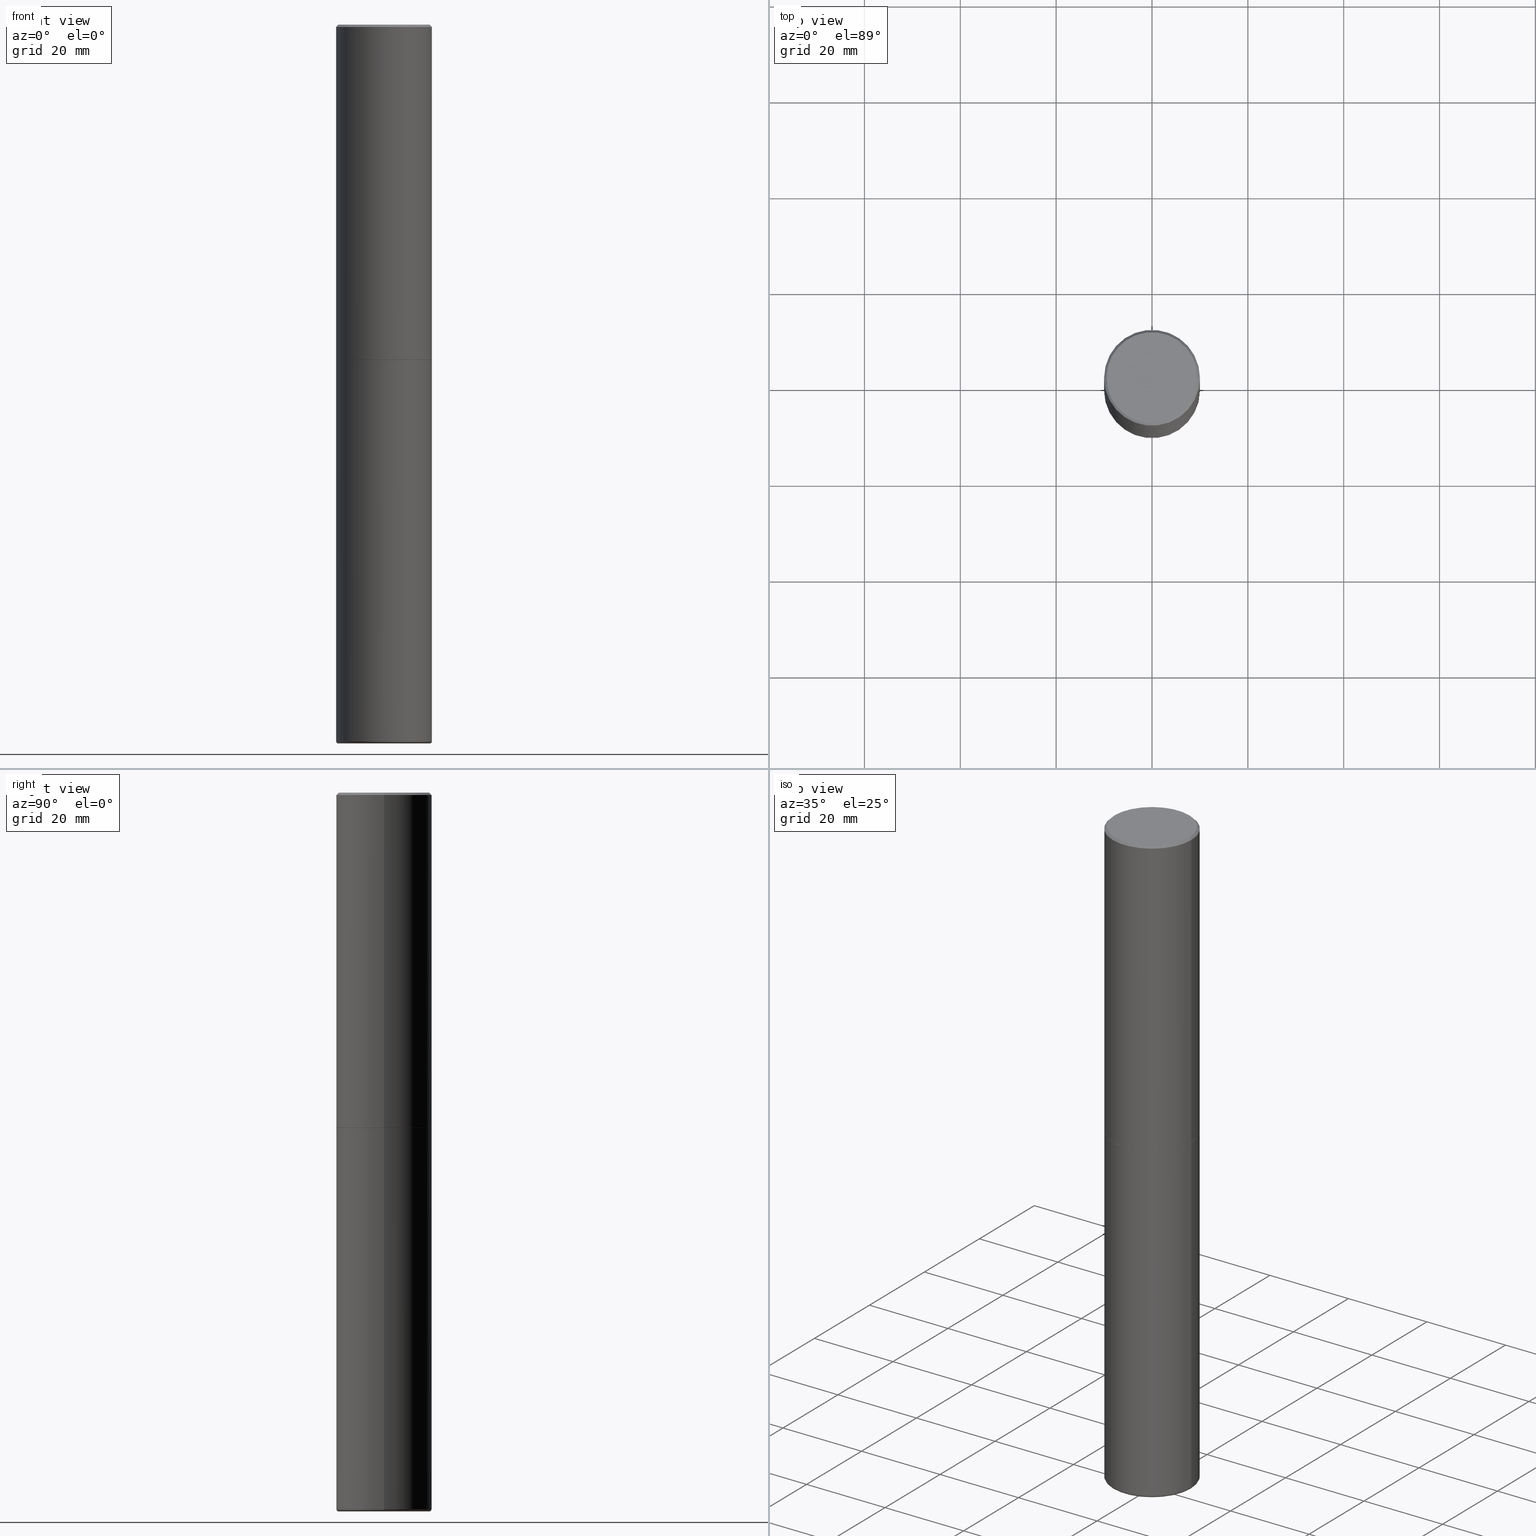
[diagram: canonical four-view strip — front | top / right | iso, engineering-drawing reading convention]
A machine part, canonical four-view strip (front | top / right | iso — engineering-drawing reading convention). The complete STEP part file that produces these views, byte-faithful:
ISO-10303-21;
HEADER;
FILE_DESCRIPTION (( 'STEP AP203' ),
    '1' );
FILE_NAME ('44880.STEP',
    '2024-03-04T13:00:22',
    ( '' ),
    ( '' ),
    'SwSTEP 2.0',
    'SolidWorks 2023',
    '' );
FILE_SCHEMA (( 'CONFIG_CONTROL_DESIGN' ));
ENDSEC;

DATA;
#1 = EDGE_CURVE ( 'NONE', #259, #320, #47, .T. ) ;
#2 = ORIENTED_EDGE ( 'NONE', *, *, #90, .T. ) ;
#3 = AXIS2_PLACEMENT_3D ( 'NONE', #261, #307, #238 ) ;
#4 = PERSON_AND_ORGANIZATION ( #190, #338 ) ;
#5 = LOCAL_TIME ( 8, 0, 22.00000000000000000, #408 ) ;
#6 = ORIENTED_EDGE ( 'NONE', *, *, #192, .F. ) ;
#7 = DIRECTION ( 'NONE',  ( -1.000000000000000000, 6.982962677686265922E-15, 0.000000000000000000 ) ) ;
#8 = ORIENTED_EDGE ( 'NONE', *, *, #352, .F. ) ;
#9 = DIRECTION ( 'NONE',  ( -2.445468806185136597E-29, 3.491481338843145583E-15, 1.000000000000000000 ) ) ;
#10 = CC_DESIGN_DATE_AND_TIME_ASSIGNMENT ( #345, #149, ( #144 ) ) ;
#11 = DATE_AND_TIME ( #113, #165 ) ;
#12 = COORDINATED_UNIVERSAL_TIME_OFFSET ( 5, 0, .BEHIND. ) ;
#13 = DIRECTION ( 'NONE',  ( -2.445468806185136877E-29, 3.491481338843145188E-15, 1.000000000000000000 ) ) ;
#14 = CARTESIAN_POINT ( 'NONE',  ( 0.000000000000000000, 0.000000000000000000, 0.000000000000000000 ) ) ;
#15 = AXIS2_PLACEMENT_3D ( 'NONE', #175, #18, #240 ) ;
#16 = CARTESIAN_POINT ( 'NONE',  ( -0.3737000000000000322, 2.644447966039789058E-15, 6.829619984158820247E-17 ) ) ;
#17 = EDGE_LOOP ( 'NONE', ( #328, #380, #95, #330 ) ) ;
#18 = DIRECTION ( 'NONE',  ( -2.445468806185136597E-29, 3.491481338843145583E-15, 1.000000000000000000 ) ) ;
#19 = DIRECTION ( 'NONE',  ( -6.982962677686266711E-15, -1.000000000000000000, 3.491481338843145583E-15 ) ) ;
#20 = MANIFOLD_SOLID_BREP ( 'Body-Move/Copy2[2]', #321 ) ;
#21 = DIRECTION ( 'NONE',  ( 0.7071067811867647324, -2.468850131084532135E-15, 0.7071067811863303021 ) ) ;
#22 = PLANE ( 'NONE',  #374 ) ;
#23 = CYLINDRICAL_SURFACE ( 'NONE', #413, 0.3936999999999999389 ) ;
#24 = PERSON_AND_ORGANIZATION_ROLE ( 'creator' ) ;
#25 = CARTESIAN_POINT ( 'NONE',  ( -0.3936999999999996613, -1.775275411347546994E-14, -5.885799999999998811 ) ) ;
#26 = PRODUCT ( '44880', '44880', '', ( #154 ) ) ;
#27 = CIRCLE ( 'NONE', #292, 0.3739999999999999991 ) ;
#28 = MANIFOLD_SOLID_BREP ( 'Body-Move/Copy2[1]', #365 ) ;
#29 = CARTESIAN_POINT ( 'NONE',  ( 0.3739999999999999991, -2.323057108799284966E-14, -5.905499999999997307 ) ) ;
#30 = CIRCLE ( 'NONE', #130, 0.3937000000000004385 ) ;
#31 = DIRECTION ( 'NONE',  ( 1.000000000000000000, -6.982962677686265922E-15, 4.876176775795935793E-29 ) ) ;
#32 = EDGE_CURVE ( 'NONE', #101, #320, #309, .T. ) ;
#33 = EDGE_LOOP ( 'NONE', ( #228, #209, #197, #161 ) ) ;
#34 = VERTEX_POINT ( 'NONE', #232 ) ;
#35 = AXIS2_PLACEMENT_3D ( 'NONE', #277, #316, #390 ) ;
#36 = EDGE_CURVE ( 'NONE', #72, #305, #353, .T. ) ;
#37 = AXIS2_PLACEMENT_3D ( 'NONE', #375, #219, #414 ) ;
#38 = EDGE_LOOP ( 'NONE', ( #291, #136 ) ) ;
#39 = EDGE_CURVE ( 'NONE', #205, #254, #167, .T. ) ;
#40 = DIRECTION ( 'NONE',  ( -0.7071067811867647324, 7.493145998871139866E-15, 0.7071067811863303021 ) ) ;
#41 = ORIENTED_EDGE ( 'NONE', *, *, #36, .F. ) ;
#42 = CIRCLE ( 'NONE', #56, 0.3937000000000000499 ) ;
#43 = CARTESIAN_POINT ( 'NONE',  ( -0.3926999999999999935, -6.831872098387905090E-15, -2.755899999999998240 ) ) ;
#44 = TOROIDAL_SURFACE ( 'NONE', #394, 0.3739999999999999991, 0.01969999999999931528 ) ;
#45 = EDGE_CURVE ( 'NONE', #325, #259, #287, .T. ) ;
#46 = CARTESIAN_POINT ( 'NONE',  ( 0.3936999999999999389, -2.749192406205082822E-15, 1.919750796630859611E-29 ) ) ;
#47 = LINE ( 'NONE', #43, #405 ) ;
#48 = DIRECTION ( 'NONE',  ( -1.000000000000000000, 6.982962677686265922E-15, -4.876176775795935793E-29 ) ) ;
#49 = FACE_OUTER_BOUND ( 'NONE', #289, .T. ) ;
#50 = CARTESIAN_POINT ( 'NONE',  ( 6.739467482965614869E-29, -9.622173421717819657E-15, -2.755899999999998240 ) ) ;
#51 = CARTESIAN_POINT ( 'NONE',  ( -0.3926999999999999935, -6.826573644039681899E-15, -2.755899999999998240 ) ) ;
#52 = ADVANCED_FACE ( 'NONE', ( #108 ), #179, .T. ) ;
#53 = DIRECTION ( 'NONE',  ( 1.000000000000000000, -6.982962677686266711E-15, 4.876176775795935793E-29 ) ) ;
#54 = CARTESIAN_POINT ( 'NONE',  ( 1.444171603492631822E-28, -2.061894304653818566E-14, -5.905499999999997307 ) ) ;
#55 = DIRECTION ( 'NONE',  ( -2.445468806185136597E-29, 3.491481338843145583E-15, 1.000000000000000000 ) ) ;
#56 = AXIS2_PLACEMENT_3D ( 'NONE', #115, #278, #308 ) ;
#57 = ADVANCED_FACE ( 'NONE', ( #341 ), #270, .T. ) ;
#58 = CARTESIAN_POINT ( 'NONE',  ( 4.890937612370294178E-31, -6.982962677686321191E-17, -0.02000000000000008715 ) ) ;
#59 = AXIS2_PLACEMENT_3D ( 'NONE', #75, #406, #48 ) ;
#60 = DIRECTION ( 'NONE',  ( -2.445468806185136877E-29, 3.491481338843145188E-15, 1.000000000000000000 ) ) ;
#61 = EDGE_LOOP ( 'NONE', ( #397, #298 ) ) ;
#62 = DIRECTION ( 'NONE',  ( 1.000000000000000000, 0.000000000000000000, 0.000000000000000000 ) ) ;
#63 = AXIS2_PLACEMENT_3D ( 'NONE', #80, #19, #77 ) ;
#64 = APPROVAL_PERSON_ORGANIZATION ( #119, #417, #71 ) ;
#65 = ORIENTED_EDGE ( 'NONE', *, *, #103, .T. ) ;
#66 = ORIENTED_EDGE ( 'NONE', *, *, #45, .T. ) ;
#67 = DIRECTION ( 'NONE',  ( 0.7071067811865446862, -7.319954787623245001E-15, -0.7071067811865503483 ) ) ;
#68 = EDGE_CURVE ( 'NONE', #257, #72, #195, .T. ) ;
#69 = ORIENTED_EDGE ( 'NONE', *, *, #223, .T. ) ;
#70 = AXIS2_PLACEMENT_3D ( 'NONE', #177, #112, #364 ) ;
#71 = APPROVAL_ROLE ( '' ) ;
#72 = VERTEX_POINT ( 'NONE', #25 ) ;
#73 = EDGE_CURVE ( 'NONE', #305, #361, #42, .T. ) ;
#74 = ORIENTED_EDGE ( 'NONE', *, *, #36, .T. ) ;
#75 = CARTESIAN_POINT ( 'NONE',  ( 6.739467482965614869E-29, -9.622173421717819657E-15, -2.755899999999998240 ) ) ;
#76 = COORDINATED_UNIVERSAL_TIME_OFFSET ( 5, 0, .BEHIND. ) ;
#77 = DIRECTION ( 'NONE',  ( 1.000000000000000000, -6.982962677686176780E-15, 0.000000000000000000 ) ) ;
#78 = DIRECTION ( 'NONE',  ( -2.445468806185136597E-29, 3.491481338843145583E-15, 1.000000000000000000 ) ) ;
#79 = FACE_OUTER_BOUND ( 'NONE', #102, .T. ) ;
#80 = CARTESIAN_POINT ( 'NONE',  ( 0.3739999999999999991, -2.316178890561764478E-14, -5.885799999999998811 ) ) ;
#81 = CC_DESIGN_PERSON_AND_ORGANIZATION_ASSIGNMENT ( #97, #382, ( #26 ) ) ;
#82 = CIRCLE ( 'NONE', #386, 0.3937000000000000499 ) ;
#83 = DIRECTION ( 'NONE',  ( -2.445468806185136597E-29, 3.491481338843145583E-15, 1.000000000000000000 ) ) ;
#84 = DIRECTION ( 'NONE',  ( 1.000000000000000000, -6.982962677686267499E-15, 0.000000000000000000 ) ) ;
#85 = DIRECTION ( 'NONE',  ( -0.7071067811865446862, 2.468850131082227084E-15, -0.7071067811865503483 ) ) ;
#86 = PERSON_AND_ORGANIZATION ( #190, #338 ) ;
#87 = CARTESIAN_POINT ( 'NONE',  ( 6.739467482965614869E-29, -9.622173421717819657E-15, -2.755899999999998240 ) ) ;
#88 = DIRECTION ( 'NONE',  ( -2.445468806185136877E-29, 3.491481338843145188E-15, 1.000000000000000000 ) ) ;
#89 = LENGTH_MEASURE_WITH_UNIT ( LENGTH_MEASURE( 0.02539999999999999897 ), #244 );
#90 = EDGE_CURVE ( 'NONE', #233, #257, #122, .T. ) ;
#91 = PLANE ( 'NONE',  #388 ) ;
#92 = VECTOR ( 'NONE', #21, 39.37007874015748143 ) ;
#93 = AXIS2_PLACEMENT_3D ( 'NONE', #187, #313, #314 ) ;
#94 = APPLICATION_PROTOCOL_DEFINITION ( 'international standard', 'config_control_design', 1994, #318 ) ;
#95 = ORIENTED_EDGE ( 'NONE', *, *, #266, .T. ) ;
#96 = PRODUCT_DEFINITION_SHAPE ( 'NONE', 'NONE',  #144 ) ;
#97 = PERSON_AND_ORGANIZATION ( #190, #338 ) ;
#98 = FACE_OUTER_BOUND ( 'NONE', #351, .T. ) ;
#99 = AXIS2_PLACEMENT_3D ( 'NONE', #50, #317, #31 ) ;
#100 = CC_DESIGN_APPROVAL ( #118, ( #182 ) ) ;
#101 = VERTEX_POINT ( 'NONE', #214 ) ;
#102 = EDGE_LOOP ( 'NONE', ( #332, #288, #69, #8 ) ) ;
#103 = EDGE_CURVE ( 'NONE', #320, #34, #120, .T. ) ;
#104 = PLANE ( 'NONE',  #99 ) ;
#105 = VERTEX_POINT ( 'NONE', #181 ) ;
#106 = AXIS2_PLACEMENT_3D ( 'NONE', #215, #281, #369 ) ;
#107 = APPLICATION_CONTEXT ( 'configuration controlled 3d designs of mechanical parts and assemblies' ) ;
#108 = FACE_OUTER_BOUND ( 'NONE', #33, .T. ) ;
#109 = DIRECTION ( 'NONE',  ( -1.000000000000000000, 6.982962677686265922E-15, -4.876176775795935793E-29 ) ) ;
#110 = DIRECTION ( 'NONE',  ( -2.445468806185136597E-29, 3.491481338843145583E-15, 1.000000000000000000 ) ) ;
#111 = ORIENTED_EDGE ( 'NONE', *, *, #103, .F. ) ;
#112 = DIRECTION ( 'NONE',  ( -2.445468806185136597E-29, 3.491481338843145583E-15, 1.000000000000000000 ) ) ;
#113 = CALENDAR_DATE ( 2024, 4, 3 ) ;
#114 = AXIS2_PLACEMENT_3D ( 'NONE', #415, #253, #62 ) ;
#115 = CARTESIAN_POINT ( 'NONE',  ( 6.739467482965614869E-29, -9.622173421717819657E-15, -2.755899999999998240 ) ) ;
#116 = CARTESIAN_POINT ( 'NONE',  ( 0.3926999999999999935, -1.236438286524521528E-14, -2.755899999999998240 ) ) ;
#117 = DIRECTION ( 'NONE',  ( -2.445468806185136597E-29, 3.491481338843145583E-15, 1.000000000000000000 ) ) ;
#118 = APPROVAL ( #337, 'UNSPECIFIED' ) ;
#119 = PERSON_AND_ORGANIZATION ( #190, #338 ) ;
#120 = LINE ( 'NONE', #403, #300 ) ;
#121 = CARTESIAN_POINT ( 'NONE',  ( -1.670162262936351711E-45, 2.384549072608715520E-31, 6.829619984160658046E-17 ) ) ;
#122 = CIRCLE ( 'NONE', #63, 0.01969999999999931528 ) ;
#123 = FACE_OUTER_BOUND ( 'NONE', #176, .T. ) ;
#124 = APPROVAL_PERSON_ORGANIZATION ( #86, #118, #180 ) ;
#125 = EDGE_CURVE ( 'NONE', #233, #105, #27, .T. ) ;
#126 = DIRECTION ( 'NONE',  ( 1.000000000000000000, -6.982962677686265922E-15, 0.000000000000000000 ) ) ;
#127 = DIRECTION ( 'NONE',  ( 2.438088387897960049E-29, -3.491481338843145188E-15, -1.000000000000000000 ) ) ;
#128 = COORDINATED_UNIVERSAL_TIME_OFFSET ( 5, 0, .BEHIND. ) ;
#129 = VECTOR ( 'NONE', #67, 39.37007874015748143 ) ;
#130 = AXIS2_PLACEMENT_3D ( 'NONE', #355, #9, #138 ) ;
#131 = EDGE_CURVE ( 'NONE', #389, #205, #348, .T. ) ;
#132 = ORIENTED_EDGE ( 'NONE', *, *, #39, .F. ) ;
#133 = EDGE_LOOP ( 'NONE', ( #162, #193 ) ) ;
#134 = ORIENTED_EDGE ( 'NONE', *, *, #192, .T. ) ;
#135 = FACE_OUTER_BOUND ( 'NONE', #399, .T. ) ;
#136 = ORIENTED_EDGE ( 'NONE', *, *, #402, .F. ) ;
#137 = ORIENTED_EDGE ( 'NONE', *, *, #131, .T. ) ;
#138 = DIRECTION ( 'NONE',  ( 1.000000000000000000, -6.982962677686265922E-15, 0.000000000000000000 ) ) ;
#139 = AXIS2_PLACEMENT_3D ( 'NONE', #58, #284, #7 ) ;
#140 = ORIENTED_EDGE ( 'NONE', *, *, #198, .F. ) ;
#141 = DIRECTION ( 'NONE',  ( -2.445468806185136597E-29, 3.491481338843145583E-15, 1.000000000000000000 ) ) ;
#142 = COORDINATED_UNIVERSAL_TIME_OFFSET ( 5, 0, .BEHIND. ) ;
#143 = DIRECTION ( 'NONE',  ( 1.000000000000000000, -6.982962677686265133E-15, 0.000000000000000000 ) ) ;
#144 = PRODUCT_DEFINITION ( 'UNKNOWN', '', #182, #217 ) ;
#145 = CARTESIAN_POINT ( 'NONE',  ( 3.853917836355216403E-28, 1.388999455043361069E-14, -5.905499999999998195 ) ) ;
#146 = DIRECTION ( 'NONE',  ( -2.445468806185136597E-29, 3.491481338843145583E-15, 1.000000000000000000 ) ) ;
#147 = CARTESIAN_POINT ( 'NONE',  ( 0.3937000000000002164, -2.749192406205084794E-15, 1.919750796630861012E-29 ) ) ;
#148 = ADVANCED_FACE ( 'NONE', ( #123 ), #280, .T. ) ;
#149 = DATE_TIME_ROLE ( 'creation_date' ) ;
#150 = CONICAL_SURFACE ( 'NONE', #35, 0.3926999999999999935, 0.7853981633977554777 ) ;
#151 = CALENDAR_DATE ( 2024, 4, 3 ) ;
#152 = CIRCLE ( 'NONE', #15, 0.3926999999999999935 ) ;
#153 = LINE ( 'NONE', #147, #272 ) ;
#154 = MECHANICAL_CONTEXT ( 'NONE', #318, 'mechanical' ) ;
#155 = CARTESIAN_POINT ( 'NONE',  ( 0.3737000000000000322, -2.667287895133368753E-15, 6.829619984162503241E-17 ) ) ;
#156 = ORIENTED_EDGE ( 'NONE', *, *, #131, .F. ) ;
#157 = EDGE_CURVE ( 'NONE', #34, #254, #158, .T. ) ;
#158 = CIRCLE ( 'NONE', #392, 0.3937000000000000499 ) ;
#159 = EDGE_LOOP ( 'NONE', ( #111, #359, #323, #384 ) ) ;
#160 = FACE_OUTER_BOUND ( 'NONE', #133, .T. ) ;
#161 = ORIENTED_EDGE ( 'NONE', *, *, #90, .F. ) ;
#162 = ORIENTED_EDGE ( 'NONE', *, *, #45, .F. ) ;
#163 = ADVANCED_FACE ( 'NONE', ( #160 ), #104, .F. ) ;
#164 = CIRCLE ( 'NONE', #264, 0.3936999999999999389 ) ;
#165 = LOCAL_TIME ( 8, 0, 22.00000000000000000, #128 ) ;
#166 = ORIENTED_EDGE ( 'NONE', *, *, #302, .T. ) ;
#167 = LINE ( 'NONE', #296, #129 ) ;
#168 = EDGE_LOOP ( 'NONE', ( #335, #173, #2, #6 ) ) ;
#169 = CC_DESIGN_DATE_AND_TIME_ASSIGNMENT ( #11, #407, ( #251 ) ) ;
#170 = AXIS2_PLACEMENT_3D ( 'NONE', #275, #83, #411 ) ;
#171 = DIRECTION ( 'NONE',  ( 1.000000000000000000, -6.982962677686265922E-15, 0.000000000000000000 ) ) ;
#172 = VECTOR ( 'NONE', #401, 39.37007874015748143 ) ;
#173 = ORIENTED_EDGE ( 'NONE', *, *, #402, .T. ) ;
#174 = CYLINDRICAL_SURFACE ( 'NONE', #273, 0.3937000000000002164 ) ;
#175 = CARTESIAN_POINT ( 'NONE',  ( 6.739467482965614869E-29, -9.622173421717819657E-15, -2.755899999999998240 ) ) ;
#176 = EDGE_LOOP ( 'NONE', ( #132, #156, #166, #267 ) ) ;
#177 = CARTESIAN_POINT ( 'NONE',  ( 1.444171603492631822E-28, -2.061894304653818566E-14, -5.905499999999997307 ) ) ;
#178 = FACE_OUTER_BOUND ( 'NONE', #38, .T. ) ;
#179 = TOROIDAL_SURFACE ( 'NONE', #372, 0.3739999999999999991, 0.01969999999999931528 ) ;
#180 = APPROVAL_ROLE ( '' ) ;
#181 = CARTESIAN_POINT ( 'NONE',  ( -0.3739999999999999991, -1.785713366413544637E-14, -5.905499999999997307 ) ) ;
#182 = PRODUCT_DEFINITION_FORMATION_WITH_SPECIFIED_SOURCE ( 'ANY', '', #26, .NOT_KNOWN. ) ;
#183 = CARTESIAN_POINT ( 'NONE',  ( 2.609533152651357803E-15, 0.3737000000000000322, -1.270618476404880419E-15 ) ) ;
#184 = DIRECTION ( 'NONE',  ( 1.000000000000000000, -6.982962677686270655E-15, 4.883557194083114583E-29 ) ) ;
#185 = ADVANCED_FACE ( 'NONE', ( #135 ), #150, .T. ) ;
#186 = DATE_AND_TIME ( #151, #5 ) ;
#187 = CARTESIAN_POINT ( 'NONE',  ( -0.3739999999999999991, -1.789273103242020846E-14, -5.885799999999998811 ) ) ;
#188 = DIRECTION ( 'NONE',  ( -2.445468806185136597E-29, 3.491481338843145583E-15, 1.000000000000000000 ) ) ;
#189 = AXIS2_PLACEMENT_3D ( 'NONE', #121, #340, #301 ) ;
#190 = PERSON ( 'UNSPECIFIED', 'UNSPECIFIED', 'UNSPECIFIED', ('UNSPECIFIED'), ('UNSPECIFIED'), ('UNSPECIFIED') ) ;
#191 = DIRECTION ( 'NONE',  ( -1.000000000000000000, 6.982962677686265922E-15, -4.876176775795935793E-29 ) ) ;
#192 = EDGE_CURVE ( 'NONE', #72, #257, #164, .T. ) ;
#193 = ORIENTED_EDGE ( 'NONE', *, *, #396, .F. ) ;
#194 = PERSON_AND_ORGANIZATION_ROLE ( 'design_supplier' ) ;
#195 = CIRCLE ( 'NONE', #106, 0.3936999999999999389 ) ;
#196 = CONICAL_SURFACE ( 'NONE', #139, 0.3937000000000000499, 0.7853981633974442822 ) ;
#197 = ORIENTED_EDGE ( 'NONE', *, *, #68, .F. ) ;
#198 = EDGE_CURVE ( 'NONE', #101, #254, #153, .T. ) ;
#199 = CARTESIAN_POINT ( 'NONE',  ( 6.739467482965614869E-29, -9.622173421717819657E-15, -2.755899999999998240 ) ) ;
#200 = CIRCLE ( 'NONE', #93, 0.01969999999999931528 ) ;
#201 = ORIENTED_EDGE ( 'NONE', *, *, #68, .T. ) ;
#202 = DATE_AND_TIME ( #356, #333 ) ;
#203 = DIRECTION ( 'NONE',  ( 1.000000000000000000, -6.982962677686265133E-15, 0.000000000000000000 ) ) ;
#204 = CC_DESIGN_PERSON_AND_ORGANIZATION_ASSIGNMENT ( #4, #231, ( #251 ) ) ;
#205 = VERTEX_POINT ( 'NONE', #155 ) ;
#206 = FACE_OUTER_BOUND ( 'NONE', #61, .T. ) ;
#207 = DATE_AND_TIME ( #334, #260 ) ;
#208 = LINE ( 'NONE', #46, #172 ) ;
#209 = ORIENTED_EDGE ( 'NONE', *, *, #311, .T. ) ;
#210 = VECTOR ( 'NONE', #13, 39.37007874015748143 ) ;
#211 = ORIENTED_EDGE ( 'NONE', *, *, #276, .F. ) ;
#212 =( NAMED_UNIT ( * ) SI_UNIT ( $, .STERADIAN. ) SOLID_ANGLE_UNIT ( ) );
#213 = EDGE_CURVE ( 'NONE', #361, #305, #82, .T. ) ;
#214 = CARTESIAN_POINT ( 'NONE',  ( 0.3937000000000004385, -1.236787434658406144E-14, -2.754899999999998350 ) ) ;
#215 = CARTESIAN_POINT ( 'NONE',  ( 1.439354029944447260E-28, -2.055016086416298394E-14, -5.885799999999998811 ) ) ;
#216 = CARTESIAN_POINT ( 'NONE',  ( -0.3937000000000000499, -1.228876039225288859E-14, -2.755899999999998240 ) ) ;
#217 = DESIGN_CONTEXT ( 'detailed design', #107, 'design' ) ;
#218 = DIRECTION ( 'NONE',  ( -2.445468806185136597E-29, 3.491481338843145583E-15, 1.000000000000000000 ) ) ;
#219 = DIRECTION ( 'NONE',  ( 2.445468806185136597E-29, -3.491481338843145583E-15, -1.000000000000000000 ) ) ;
#220 = CALENDAR_DATE ( 2024, 4, 3 ) ;
#221 = AXIS2_PLACEMENT_3D ( 'NONE', #199, #110, #393 ) ;
#222 = LOCAL_TIME ( 8, 0, 22.00000000000000000, #12 ) ;
#223 = EDGE_CURVE ( 'NONE', #325, #101, #339, .T. ) ;
#224 = CARTESIAN_POINT ( 'NONE',  ( 1.439354029944447260E-28, -2.055016086416298394E-14, -5.885799999999998811 ) ) ;
#225 = SECURITY_CLASSIFICATION_LEVEL ( 'unclassified' ) ;
#226 = APPLICATION_PROTOCOL_DEFINITION ( 'international standard', 'config_control_design', 1994, #107 ) ;
#227 = ADVANCED_FACE ( 'NONE', ( #79 ), #378, .T. ) ;
#228 = ORIENTED_EDGE ( 'NONE', *, *, #125, .T. ) ;
#229 = CC_DESIGN_APPROVAL ( #250, ( #144 ) ) ;
#230 = APPROVAL_STATUS ( 'not_yet_approved' ) ;
#231 = PERSON_AND_ORGANIZATION_ROLE ( 'classification_officer' ) ;
#232 = CARTESIAN_POINT ( 'NONE',  ( -0.3937000000000000499, 2.679362779428219918E-15, -0.02000000000000008715 ) ) ;
#233 = VERTEX_POINT ( 'NONE', #29 ) ;
#234 = ADVANCED_FACE ( 'NONE', ( #377 ), #196, .T. ) ;
#235 =( GEOMETRIC_REPRESENTATION_CONTEXT ( 3 ) GLOBAL_UNCERTAINTY_ASSIGNED_CONTEXT ( ( #237 ) ) GLOBAL_UNIT_ASSIGNED_CONTEXT ( ( #416, #379, #212 ) ) REPRESENTATION_CONTEXT ( 'NONE', 'WORKASPACE' ) );
#236 = ORIENTED_EDGE ( 'NONE', *, *, #32, .T. ) ;
#237 = UNCERTAINTY_MEASURE_WITH_UNIT (LENGTH_MEASURE( 1.000000000000000082E-05 ), #416, 'distance_accuracy_value', 'NONE');
#238 = DIRECTION ( 'NONE',  ( 1.000000000000000000, -6.982962677686265922E-15, 0.000000000000000000 ) ) ;
#239 = CYLINDRICAL_SURFACE ( 'NONE', #282, 0.3937000000000002164 ) ;
#240 = DIRECTION ( 'NONE',  ( 1.000000000000000000, -6.982962677686265133E-15, 0.000000000000000000 ) ) ;
#241 = CARTESIAN_POINT ( 'NONE',  ( 4.890937612370294178E-31, -6.982962677686321191E-17, -0.02000000000000008715 ) ) ;
#242 = CC_DESIGN_PERSON_AND_ORGANIZATION_ASSIGNMENT ( #412, #358, ( #144 ) ) ;
#243 = ORIENTED_EDGE ( 'NONE', *, *, #1, .T. ) ;
#244 =( LENGTH_UNIT ( ) NAMED_UNIT ( * ) SI_UNIT ( $, .METRE. ) );
#245 = DIRECTION ( 'NONE',  ( 1.000000000000000000, -6.982962677686266711E-15, 4.876176775795935793E-29 ) ) ;
#246 = CARTESIAN_POINT ( 'NONE',  ( 1.439354029944447260E-28, -2.055016086416298394E-14, -5.885799999999998811 ) ) ;
#247 = DIRECTION ( 'NONE',  ( -2.445468806185136597E-29, 3.491481338843145583E-15, 1.000000000000000000 ) ) ;
#248 = APPROVAL_ROLE ( '' ) ;
#249 = DIRECTION ( 'NONE',  ( 1.000000000000000000, -6.982962677686270655E-15, 4.883557194083114583E-29 ) ) ;
#250 = APPROVAL ( #230, 'UNSPECIFIED' ) ;
#251 = SECURITY_CLASSIFICATION ( '', '', #225 ) ;
#252 = DIRECTION ( 'NONE',  ( -2.445468806185136597E-29, 3.491481338843145583E-15, 1.000000000000000000 ) ) ;
#253 = DIRECTION ( 'NONE',  ( 0.000000000000000000, 0.000000000000000000, 1.000000000000000000 ) ) ;
#254 = VERTEX_POINT ( 'NONE', #331 ) ;
#255 = CIRCLE ( 'NONE', #70, 0.3739999999999999991 ) ;
#256 = PERSON_AND_ORGANIZATION ( #190, #338 ) ;
#257 = VERTEX_POINT ( 'NONE', #306 ) ;
#258 = ADVANCED_BREP_SHAPE_REPRESENTATION ( '44880', ( #28, #20, #114 ), #235 ) ;
#259 = VERTEX_POINT ( 'NONE', #51 ) ;
#260 = LOCAL_TIME ( 8, 0, 22.00000000000000000, #142 ) ;
#261 = CARTESIAN_POINT ( 'NONE',  ( 6.737022014159429266E-29, -9.618681940378976650E-15, -2.754899999999998350 ) ) ;
#262 = ORIENTED_EDGE ( 'NONE', *, *, #213, .F. ) ;
#263 = CARTESIAN_POINT ( 'NONE',  ( -0.3936999999999999389, 2.797406750687513998E-15, -1.936584745033356455E-29 ) ) ;
#264 = AXIS2_PLACEMENT_3D ( 'NONE', #373, #385, #269 ) ;
#265 = EDGE_LOOP ( 'NONE', ( #41, #134, #363, #326 ) ) ;
#266 = EDGE_CURVE ( 'NONE', #254, #34, #327, .T. ) ;
#267 = ORIENTED_EDGE ( 'NONE', *, *, #157, .T. ) ;
#268 = CARTESIAN_POINT ( 'NONE',  ( 0.000000000000000000, 0.000000000000000000, 0.000000000000000000 ) ) ;
#269 = DIRECTION ( 'NONE',  ( 1.000000000000000000, -6.982962677686269866E-15, 0.000000000000000000 ) ) ;
#270 = CYLINDRICAL_SURFACE ( 'NONE', #344, 0.3936999999999999389 ) ;
#271 = FACE_OUTER_BOUND ( 'NONE', #159, .T. ) ;
#272 = VECTOR ( 'NONE', #60, 39.37007874015748143 ) ;
#273 = AXIS2_PLACEMENT_3D ( 'NONE', #268, #297, #245 ) ;
#274 = PLANE ( 'NONE',  #59 ) ;
#275 = CARTESIAN_POINT ( 'NONE',  ( -1.670162262936351711E-45, 2.384549072608715520E-31, 6.829619984160658046E-17 ) ) ;
#276 = EDGE_CURVE ( 'NONE', #257, #361, #208, .T. ) ;
#277 = CARTESIAN_POINT ( 'NONE',  ( 6.739467482965614869E-29, -9.622173421717819657E-15, -2.755899999999998240 ) ) ;
#278 = DIRECTION ( 'NONE',  ( -2.445468806185136597E-29, 3.491481338843145583E-15, 1.000000000000000000 ) ) ;
#279 = APPROVAL_DATE_TIME ( #207, #250 ) ;
#280 = CONICAL_SURFACE ( 'NONE', #37, 0.3937000000000000499, 0.7853981633974442822 ) ;
#281 = DIRECTION ( 'NONE',  ( -2.445468806185136597E-29, 3.491481338843145583E-15, 1.000000000000000000 ) ) ;
#282 = AXIS2_PLACEMENT_3D ( 'NONE', #14, #141, #404 ) ;
#283 = ADVANCED_FACE ( 'NONE', ( #303 ), #44, .T. ) ;
#284 = DIRECTION ( 'NONE',  ( 2.445468806185136597E-29, -3.491481338843145583E-15, -1.000000000000000000 ) ) ;
#285 = CARTESIAN_POINT ( 'NONE',  ( 6.739467482965614869E-29, -9.622173421717819657E-15, -2.755899999999998240 ) ) ;
#286 = ORIENTED_EDGE ( 'NONE', *, *, #381, .T. ) ;
#287 = CIRCLE ( 'NONE', #221, 0.3926999999999999935 ) ;
#288 = ORIENTED_EDGE ( 'NONE', *, *, #396, .T. ) ;
#289 = EDGE_LOOP ( 'NONE', ( #201, #74, #262, #211 ) ) ;
#290 = DIMENSIONAL_EXPONENTS ( 1.000000000000000000, 0.000000000000000000, 0.000000000000000000, 0.000000000000000000, 0.000000000000000000, 0.000000000000000000, 0.000000000000000000 ) ;
#291 = ORIENTED_EDGE ( 'NONE', *, *, #125, .F. ) ;
#292 = AXIS2_PLACEMENT_3D ( 'NONE', #54, #146, #143 ) ;
#293 = CIRCLE ( 'NONE', #189, 0.3737000000000000322 ) ;
#294 = ADVANCED_FACE ( 'NONE', ( #418 ), #91, .F. ) ;
#295 = ORIENTED_EDGE ( 'NONE', *, *, #223, .F. ) ;
#296 = CARTESIAN_POINT ( 'NONE',  ( 0.3937000000000000499, -2.770807688499515734E-15, -0.02000000000000008715 ) ) ;
#297 = DIRECTION ( 'NONE',  ( -2.445468806185136597E-29, 3.491481338843145583E-15, 1.000000000000000000 ) ) ;
#298 = ORIENTED_EDGE ( 'NONE', *, *, #73, .T. ) ;
#299 = DIRECTION ( 'NONE',  ( 2.438088387897960049E-29, -3.491481338843145188E-15, -1.000000000000000000 ) ) ;
#300 = VECTOR ( 'NONE', #88, 39.37007874015748143 ) ;
#301 = DIRECTION ( 'NONE',  ( 1.000000000000000000, -6.982962677686266711E-15, 4.877734241229875126E-29 ) ) ;
#302 = EDGE_CURVE ( 'NONE', #389, #34, #319, .T. ) ;
#303 = FACE_OUTER_BOUND ( 'NONE', #168, .T. ) ;
#304 = VECTOR ( 'NONE', #85, 39.37007874015748143 ) ;
#305 = VERTEX_POINT ( 'NONE', #216 ) ;
#306 = CARTESIAN_POINT ( 'NONE',  ( 0.3936999999999996613, -2.329935327036806400E-14, -5.885799999999998811 ) ) ;
#307 = DIRECTION ( 'NONE',  ( -2.445468806185136597E-29, 3.491481338843145583E-15, 1.000000000000000000 ) ) ;
#308 = DIRECTION ( 'NONE',  ( 1.000000000000000000, -6.982962677686267499E-15, 0.000000000000000000 ) ) ;
#309 = CIRCLE ( 'NONE', #3, 0.3937000000000004385 ) ;
#310 = CC_DESIGN_APPROVAL ( #417, ( #251 ) ) ;
#311 = EDGE_CURVE ( 'NONE', #105, #72, #200, .T. ) ;
#312 = CARTESIAN_POINT ( 'NONE',  ( 0.000000000000000000, 0.000000000000000000, 0.000000000000000000 ) ) ;
#313 = DIRECTION ( 'NONE',  ( 7.105427357601001859E-15, 1.000000000000000000, -3.491481338843145583E-15 ) ) ;
#314 = DIRECTION ( 'NONE',  ( -1.000000000000000000, 7.105427357600976615E-15, 0.000000000000000000 ) ) ;
#315 = ADVANCED_FACE ( 'NONE', ( #98 ), #174, .T. ) ;
#316 = DIRECTION ( 'NONE',  ( -2.445468806185136597E-29, 3.491481338843145583E-15, 1.000000000000000000 ) ) ;
#317 = DIRECTION ( 'NONE',  ( -2.438088387897960049E-29, 3.491481338843145188E-15, 1.000000000000000000 ) ) ;
#318 = APPLICATION_CONTEXT ( 'configuration controlled 3d designs of mechanical parts and assemblies' ) ;
#319 = LINE ( 'NONE', #410, #304 ) ;
#320 = VERTEX_POINT ( 'NONE', #398 ) ;
#321 = CLOSED_SHELL ( 'NONE', ( #185, #315, #234, #148, #342, #227, #163, #294 ) ) ;
#322 = ADVANCED_FACE ( 'NONE', ( #178 ), #22, .T. ) ;
#323 = ORIENTED_EDGE ( 'NONE', *, *, #198, .T. ) ;
#324 = AXIS2_PLACEMENT_3D ( 'NONE', #87, #78, #203 ) ;
#325 = VERTEX_POINT ( 'NONE', #116 ) ;
#326 = ORIENTED_EDGE ( 'NONE', *, *, #73, .F. ) ;
#327 = CIRCLE ( 'NONE', #346, 0.3937000000000000499 ) ;
#328 = ORIENTED_EDGE ( 'NONE', *, *, #381, .F. ) ;
#329 = APPROVAL_DATE_TIME ( #202, #417 ) ;
#330 = ORIENTED_EDGE ( 'NONE', *, *, #302, .F. ) ;
#331 = CARTESIAN_POINT ( 'NONE',  ( 0.3937000000000000499, -2.770807688499515734E-15, -0.02000000000000008715 ) ) ;
#332 = ORIENTED_EDGE ( 'NONE', *, *, #1, .F. ) ;
#333 = LOCAL_TIME ( 8, 0, 22.00000000000000000, #76 ) ;
#334 = CALENDAR_DATE ( 2024, 4, 3 ) ;
#335 = ORIENTED_EDGE ( 'NONE', *, *, #311, .F. ) ;
#336 = ADVANCED_FACE ( 'NONE', ( #206 ), #274, .F. ) ;
#337 = APPROVAL_STATUS ( 'not_yet_approved' ) ;
#338 = ORGANIZATION ( 'UNSPECIFIED', 'UNSPECIFIED', '' ) ;
#339 = LINE ( 'NONE', #371, #92 ) ;
#340 = DIRECTION ( 'NONE',  ( -2.445468806185136597E-29, 3.491481338843145583E-15, 1.000000000000000000 ) ) ;
#341 = FACE_OUTER_BOUND ( 'NONE', #265, .T. ) ;
#342 = ADVANCED_FACE ( 'NONE', ( #271 ), #239, .T. ) ;
#343 = CARTESIAN_POINT ( 'NONE',  ( 4.890937612370294178E-31, -6.982962677686321191E-17, -0.02000000000000008715 ) ) ;
#344 = AXIS2_PLACEMENT_3D ( 'NONE', #312, #252, #53 ) ;
#345 = DATE_AND_TIME ( #220, #222 ) ;
#346 = AXIS2_PLACEMENT_3D ( 'NONE', #241, #368, #171 ) ;
#347 = CC_DESIGN_PERSON_AND_ORGANIZATION_ASSIGNMENT ( #383, #24, ( #182 ) ) ;
#348 = CIRCLE ( 'NONE', #170, 0.3737000000000000322 ) ;
#349 = EDGE_LOOP ( 'NONE', ( #137, #286 ) ) ;
#350 = APPROVAL_PERSON_ORGANIZATION ( #256, #250, #248 ) ;
#351 = EDGE_LOOP ( 'NONE', ( #236, #65, #354, #140 ) ) ;
#352 = EDGE_CURVE ( 'NONE', #320, #101, #30, .T. ) ;
#353 = LINE ( 'NONE', #263, #210 ) ;
#354 = ORIENTED_EDGE ( 'NONE', *, *, #266, .F. ) ;
#355 = CARTESIAN_POINT ( 'NONE',  ( 6.737022014159429266E-29, -9.618681940378976650E-15, -2.754899999999998350 ) ) ;
#356 = CALENDAR_DATE ( 2024, 4, 3 ) ;
#357 = CC_DESIGN_SECURITY_CLASSIFICATION ( #251, ( #182 ) ) ;
#358 = PERSON_AND_ORGANIZATION_ROLE ( 'creator' ) ;
#359 = ORIENTED_EDGE ( 'NONE', *, *, #352, .T. ) ;
#360 = PRODUCT_RELATED_PRODUCT_CATEGORY ( 'detail', '', ( #26 ) ) ;
#361 = VERTEX_POINT ( 'NONE', #362 ) ;
#362 = CARTESIAN_POINT ( 'NONE',  ( 0.3937000000000000499, -1.237136582792290287E-14, -2.755899999999998240 ) ) ;
#363 = ORIENTED_EDGE ( 'NONE', *, *, #276, .T. ) ;
#364 = DIRECTION ( 'NONE',  ( 1.000000000000000000, -6.982962677686265133E-15, 0.000000000000000000 ) ) ;
#365 = CLOSED_SHELL ( 'NONE', ( #367, #52, #336, #57, #283, #322 ) ) ;
#366 = APPROVAL_STATUS ( 'not_yet_approved' ) ;
#367 = ADVANCED_FACE ( 'NONE', ( #49 ), #23, .T. ) ;
#368 = DIRECTION ( 'NONE',  ( -2.445468806185136597E-29, 3.491481338843145583E-15, 1.000000000000000000 ) ) ;
#369 = DIRECTION ( 'NONE',  ( 1.000000000000000000, -6.982962677686269866E-15, 0.000000000000000000 ) ) ;
#370 = DIRECTION ( 'NONE',  ( 1.000000000000000000, -6.982962677686266711E-15, 4.876176775795935793E-29 ) ) ;
#371 = CARTESIAN_POINT ( 'NONE',  ( 0.3926999999999999935, -1.236438286524521528E-14, -2.755899999999998240 ) ) ;
#372 = AXIS2_PLACEMENT_3D ( 'NONE', #246, #218, #184 ) ;
#373 = CARTESIAN_POINT ( 'NONE',  ( 1.439354029944447260E-28, -2.055016086416298394E-14, -5.885799999999998811 ) ) ;
#374 = AXIS2_PLACEMENT_3D ( 'NONE', #145, #299, #109 ) ;
#375 = CARTESIAN_POINT ( 'NONE',  ( 4.890937612370294178E-31, -6.982962677686321191E-17, -0.02000000000000008715 ) ) ;
#376 = APPROVAL_DATE_TIME ( #186, #118 ) ;
#377 = FACE_OUTER_BOUND ( 'NONE', #17, .T. ) ;
#378 = CONICAL_SURFACE ( 'NONE', #324, 0.3926999999999999935, 0.7853981633977554777 ) ;
#379 =( NAMED_UNIT ( * ) PLANE_ANGLE_UNIT ( ) SI_UNIT ( $, .RADIAN. ) );
#380 = ORIENTED_EDGE ( 'NONE', *, *, #39, .T. ) ;
#381 = EDGE_CURVE ( 'NONE', #205, #389, #293, .T. ) ;
#382 = PERSON_AND_ORGANIZATION_ROLE ( 'design_owner' ) ;
#383 = PERSON_AND_ORGANIZATION ( #190, #338 ) ;
#384 = ORIENTED_EDGE ( 'NONE', *, *, #157, .F. ) ;
#385 = DIRECTION ( 'NONE',  ( -2.445468806185136597E-29, 3.491481338843145583E-15, 1.000000000000000000 ) ) ;
#386 = AXIS2_PLACEMENT_3D ( 'NONE', #285, #247, #84 ) ;
#387 = CC_DESIGN_PERSON_AND_ORGANIZATION_ASSIGNMENT ( #400, #194, ( #182 ) ) ;
#388 = AXIS2_PLACEMENT_3D ( 'NONE', #183, #127, #191 ) ;
#389 = VERTEX_POINT ( 'NONE', #16 ) ;
#390 = DIRECTION ( 'NONE',  ( 1.000000000000000000, -6.982962677686265133E-15, 0.000000000000000000 ) ) ;
#391 = ORIENTED_EDGE ( 'NONE', *, *, #32, .F. ) ;
#392 = AXIS2_PLACEMENT_3D ( 'NONE', #343, #55, #126 ) ;
#393 = DIRECTION ( 'NONE',  ( 1.000000000000000000, -6.982962677686265133E-15, 0.000000000000000000 ) ) ;
#394 = AXIS2_PLACEMENT_3D ( 'NONE', #224, #188, #249 ) ;
#395 = SHAPE_DEFINITION_REPRESENTATION ( #96, #258 ) ;
#396 = EDGE_CURVE ( 'NONE', #259, #325, #152, .T. ) ;
#397 = ORIENTED_EDGE ( 'NONE', *, *, #213, .T. ) ;
#398 = CARTESIAN_POINT ( 'NONE',  ( -0.3937000000000004385, -2.046849032890400849E-15, -2.754899999999998350 ) ) ;
#399 = EDGE_LOOP ( 'NONE', ( #66, #243, #391, #295 ) ) ;
#400 = PERSON_AND_ORGANIZATION ( #190, #338 ) ;
#401 = DIRECTION ( 'NONE',  ( -2.445468806185136877E-29, 3.491481338843145188E-15, 1.000000000000000000 ) ) ;
#402 = EDGE_CURVE ( 'NONE', #105, #233, #255, .T. ) ;
#403 = CARTESIAN_POINT ( 'NONE',  ( -0.3937000000000002164, 2.797406750687515970E-15, -1.936584745033357576E-29 ) ) ;
#404 = DIRECTION ( 'NONE',  ( 1.000000000000000000, -6.982962677686266711E-15, 4.876176775795935793E-29 ) ) ;
#405 = VECTOR ( 'NONE', #40, 39.37007874015748143 ) ;
#406 = DIRECTION ( 'NONE',  ( 2.438088387897960049E-29, -3.491481338843145188E-15, -1.000000000000000000 ) ) ;
#407 = DATE_TIME_ROLE ( 'classification_date' ) ;
#408 = COORDINATED_UNIVERSAL_TIME_OFFSET ( 5, 0, .BEHIND. ) ;
#409 = CARTESIAN_POINT ( 'NONE',  ( 0.000000000000000000, 0.000000000000000000, 0.000000000000000000 ) ) ;
#410 = CARTESIAN_POINT ( 'NONE',  ( -0.3937000000000000499, 2.679362779428219918E-15, -0.02000000000000008715 ) ) ;
#411 = DIRECTION ( 'NONE',  ( 1.000000000000000000, -6.982962677686266711E-15, 4.877734241229875126E-29 ) ) ;
#412 = PERSON_AND_ORGANIZATION ( #190, #338 ) ;
#413 = AXIS2_PLACEMENT_3D ( 'NONE', #409, #117, #370 ) ;
#414 = DIRECTION ( 'NONE',  ( -1.000000000000000000, 6.982962677686265922E-15, 0.000000000000000000 ) ) ;
#415 = CARTESIAN_POINT ( 'NONE',  ( 0.000000000000000000, 0.000000000000000000, 0.000000000000000000 ) ) ;
#416 =( CONVERSION_BASED_UNIT ( 'INCH', #89 ) LENGTH_UNIT ( ) NAMED_UNIT ( #290 ) );
#417 = APPROVAL ( #366, 'UNSPECIFIED' ) ;
#418 = FACE_OUTER_BOUND ( 'NONE', #349, .T. ) ;
ENDSEC;
END-ISO-10303-21;
